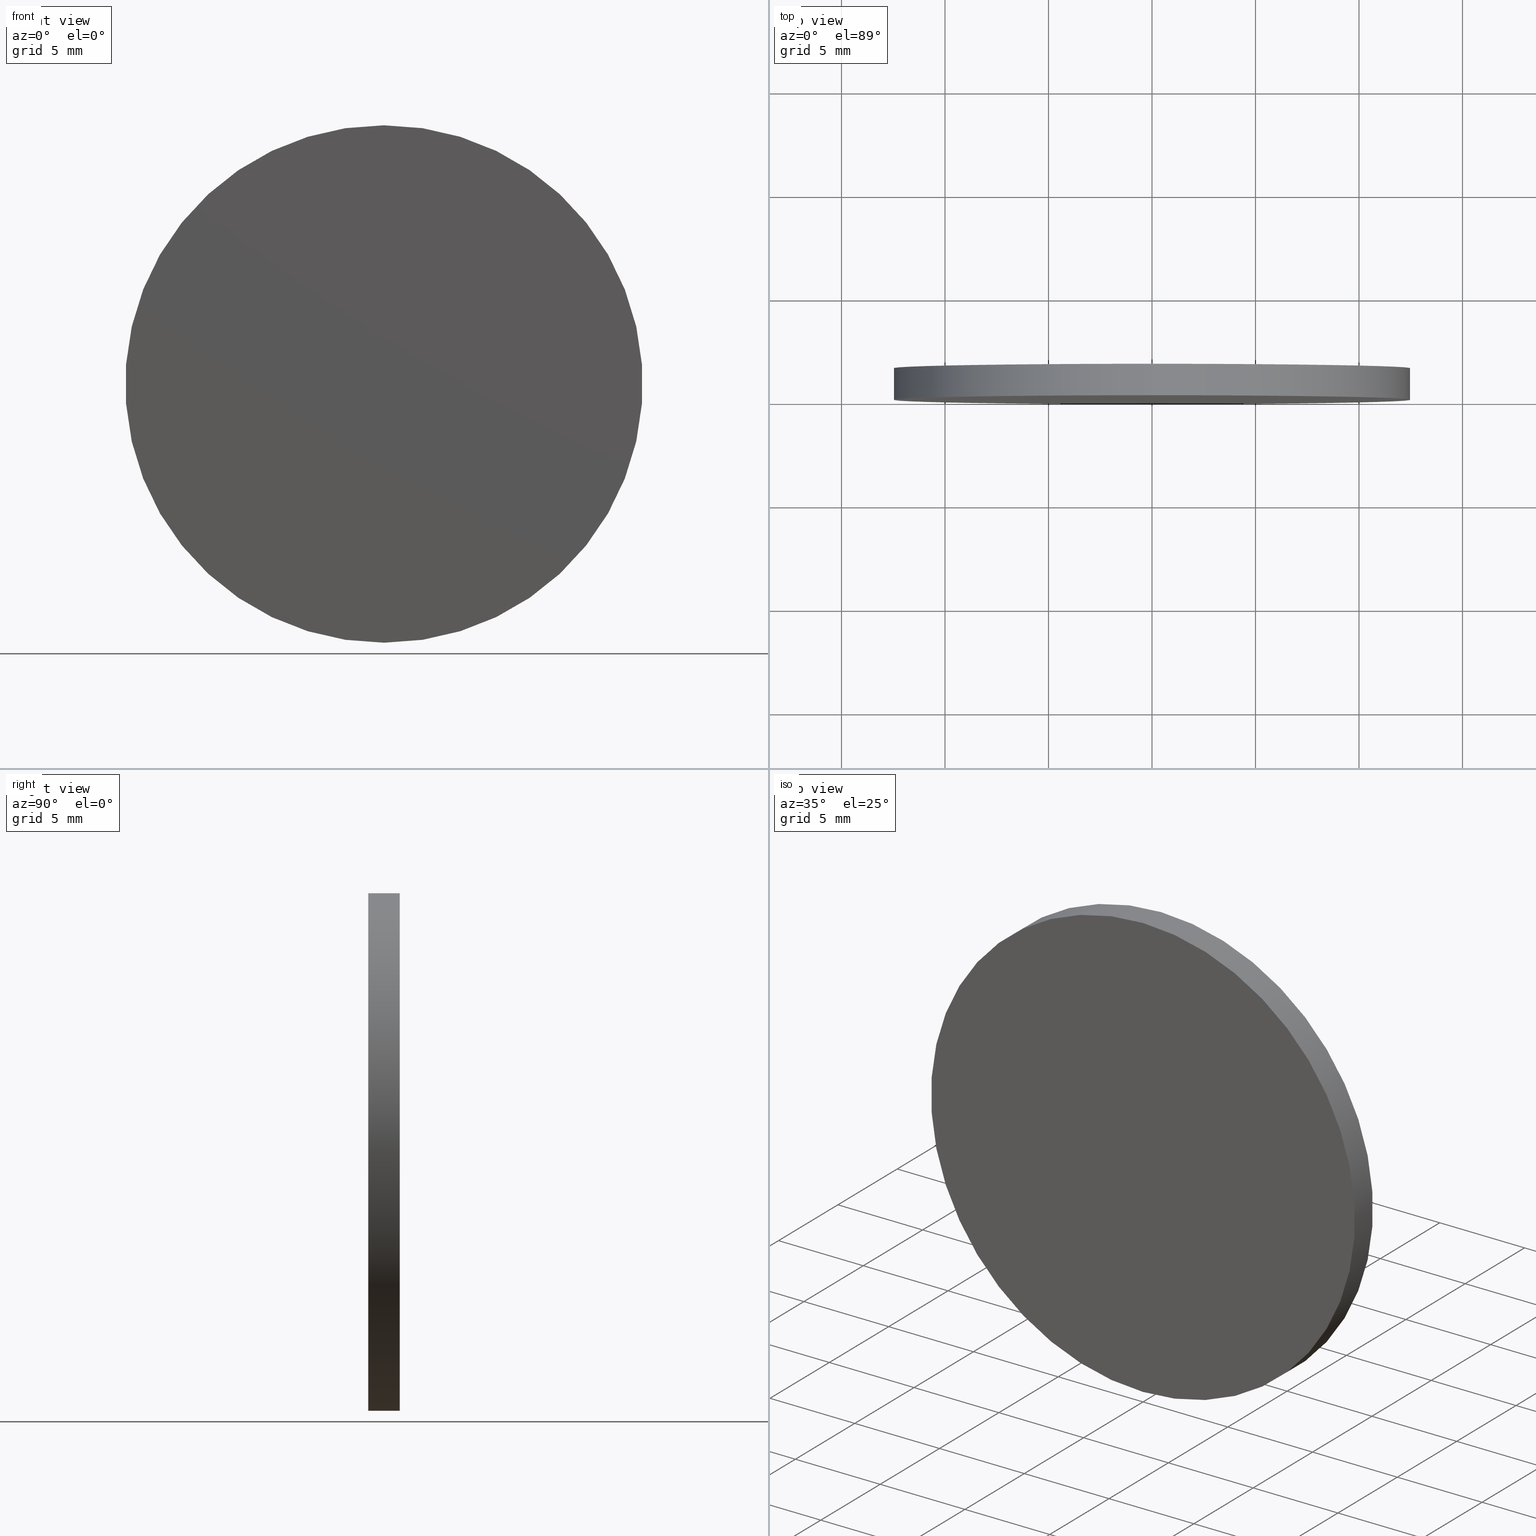
[diagram: canonical four-view strip — front | top / right | iso, engineering-drawing reading convention]
A machine part, canonical four-view strip (front | top / right | iso — engineering-drawing reading convention). The complete STEP part file that produces these views, byte-faithful:
ISO-10303-21;
HEADER;
FILE_DESCRIPTION (( 'STEP AP214' ),
    '1' );
FILE_NAME ('248582.STEP',
    '2019-08-06T02:48:38',
    ( 'user' ),
    ( '΢���й�' ),
    'SwSTEP 2.0',
    'SolidWorks 2016',
    '' );
FILE_SCHEMA (( 'AUTOMOTIVE_DESIGN' ));
ENDSEC;

DATA;
#1 = EDGE_LOOP ( 'NONE', ( #66, #125, #99, #62 ) ) ;
#2 = FACE_OUTER_BOUND ( 'NONE', #49, .T. ) ;
#3 = CARTESIAN_POINT ( 'NONE',  ( 0.0000000000000000000, 1.520000000000000000, 0.0000000000000000000 ) ) ;
#4 = CYLINDRICAL_SURFACE ( 'NONE', #19, 12.50000000000000000 ) ;
#5 =( LENGTH_UNIT ( ) NAMED_UNIT ( * ) SI_UNIT ( .MILLI., .METRE. ) );
#6 = DIRECTION ( 'NONE',  ( 0.0000000000000000000, 0.0000000000000000000, 1.000000000000000000 ) ) ;
#7 = ORIENTED_EDGE ( 'NONE', *, *, #105, .T. ) ;
#8 = FACE_OUTER_BOUND ( 'NONE', #1, .T. ) ;
#9 = ORIENTED_EDGE ( 'NONE', *, *, #57, .F. ) ;
#10 = AXIS2_PLACEMENT_3D ( 'NONE', #139, #108, #96 ) ;
#11 = VERTEX_POINT ( 'NONE', #45 ) ;
#12 = DIRECTION ( 'NONE',  ( -0.0000000000000000000, -1.000000000000000000, -0.0000000000000000000 ) ) ;
#13 = AXIS2_PLACEMENT_3D ( 'NONE', #47, #119, #46 ) ;
#14 = CARTESIAN_POINT ( 'NONE',  ( 0.0000000000000000000, 0.0000000000000000000, 0.0000000000000000000 ) ) ;
#15 = DIRECTION ( 'NONE',  ( 0.0000000000000000000, 1.000000000000000000, 0.0000000000000000000 ) ) ;
#16 = DIRECTION ( 'NONE',  ( -0.0000000000000000000, -1.000000000000000000, -0.0000000000000000000 ) ) ;
#17 = SURFACE_SIDE_STYLE ('',( #60 ) ) ;
#18 = AXIS2_PLACEMENT_3D ( 'NONE', #14, #15, #107 ) ;
#19 = AXIS2_PLACEMENT_3D ( 'NONE', #89, #12, #29 ) ;
#20 = EDGE_CURVE ( 'NONE', #11, #98, #90, .T. ) ;
#21 = DIRECTION ( 'NONE',  ( -0.0000000000000000000, -1.000000000000000000, -0.0000000000000000000 ) ) ;
#22 = AXIS2_PLACEMENT_3D ( 'NONE', #117, #6, #71 ) ;
#23 =( GEOMETRIC_REPRESENTATION_CONTEXT ( 3 ) GLOBAL_UNCERTAINTY_ASSIGNED_CONTEXT ( ( #131 ) ) GLOBAL_UNIT_ASSIGNED_CONTEXT ( ( #106, #128, #31 ) ) REPRESENTATION_CONTEXT ( 'NONE', 'WORKASPACE' ) );
#24 =( NAMED_UNIT ( * ) SI_UNIT ( $, .STERADIAN. ) SOLID_ANGLE_UNIT ( ) );
#25 = FILL_AREA_STYLE_COLOUR ( '', #118 ) ;
#26 = ADVANCED_FACE ( 'NONE', ( #2 ), #53, .T. ) ;
#27 = PRODUCT_DEFINITION ( 'δ֪', '', #32, #116 ) ;
#28 = SURFACE_STYLE_FILL_AREA ( #41 ) ;
#29 = DIRECTION ( 'NONE',  ( 0.0000000000000000000, 0.0000000000000000000, -1.000000000000000000 ) ) ;
#30 = PRESENTATION_LAYER_ASSIGNMENT (  '', '', ( #100 ) ) ;
#31 =( NAMED_UNIT ( * ) SI_UNIT ( $, .STERADIAN. ) SOLID_ANGLE_UNIT ( ) );
#32 = PRODUCT_DEFINITION_FORMATION_WITH_SPECIFIED_SOURCE ( '�κ�', '', #102, .NOT_KNOWN. ) ;
#33 = COLOUR_RGB ( '',1.000000000000000000, 1.000000000000000000, 1.000000000000000000 ) ;
#34 = ORIENTED_EDGE ( 'NONE', *, *, #86, .T. ) ;
#35 = EDGE_LOOP ( 'NONE', ( #9, #122, #34, #126 ) ) ;
#36 = MANIFOLD_SOLID_BREP ( '͹̨-����1', #64 ) ;
#37 = PRODUCT_DEFINITION_SHAPE ( 'NONE', 'NONE',  #27 ) ;
#38 = ORIENTED_EDGE ( 'NONE', *, *, #50, .F. ) ;
#39 = DIRECTION ( 'NONE',  ( 0.0000000000000000000, 0.0000000000000000000, 1.000000000000000000 ) ) ;
#40 = FACE_OUTER_BOUND ( 'NONE', #35, .T. ) ;
#41 = FILL_AREA_STYLE ('',( #25 ) ) ;
#42 = PRODUCT_RELATED_PRODUCT_CATEGORY ( 'part', '', ( #102 ) ) ;
#43 = SURFACE_STYLE_USAGE ( .BOTH. , #115 ) ;
#44 = UNCERTAINTY_MEASURE_WITH_UNIT (LENGTH_MEASURE( 1.000000000000000100E-005 ), #69, 'distance_accuracy_value', 'NONE');
#45 = CARTESIAN_POINT ( 'NONE',  ( 0.0000000000000000000, 0.0000000000000000000, -12.50000000000000000 ) ) ;
#46 = DIRECTION ( 'NONE',  ( 0.0000000000000000000, 0.0000000000000000000, 1.000000000000000000 ) ) ;
#47 = CARTESIAN_POINT ( 'NONE',  ( 0.0000000000000000000, 0.0000000000000000000, 0.0000000000000000000 ) ) ;
#48 = APPLICATION_CONTEXT ( 'automotive_design' ) ;
#49 = EDGE_LOOP ( 'NONE', ( #121, #7 ) ) ;
#50 = EDGE_CURVE ( 'NONE', #98, #11, #112, .T. ) ;
#51 = CARTESIAN_POINT ( 'NONE',  ( 0.0000000000000000000, 0.0000000000000000000, 0.0000000000000000000 ) ) ;
#52 = APPLICATION_CONTEXT ( 'automotive_design' ) ;
#53 = PLANE ( 'NONE',  #10 ) ;
#54 = UNCERTAINTY_MEASURE_WITH_UNIT (LENGTH_MEASURE( 1.000000000000000100E-005 ), #5, 'distance_accuracy_value', 'NONE');
#55 = PRESENTATION_LAYER_ASSIGNMENT (  '', '', ( #75 ) ) ;
#56 = DIRECTION ( 'NONE',  ( 0.0000000000000000000, 0.0000000000000000000, -1.000000000000000000 ) ) ;
#57 = EDGE_CURVE ( 'NONE', #101, #98, #76, .T. ) ;
#58 = CARTESIAN_POINT ( 'NONE',  ( 1.530808498934191500E-015, 1.520000000000000000, 12.50000000000000000 ) ) ;
#59 = PRESENTATION_STYLE_ASSIGNMENT (( #43 ) ) ;
#60 = SURFACE_STYLE_FILL_AREA ( #97 ) ;
#61 = DIRECTION ( 'NONE',  ( 0.0000000000000000000, 1.000000000000000000, 0.0000000000000000000 ) ) ;
#62 = ORIENTED_EDGE ( 'NONE', *, *, #86, .F. ) ;
#63 = MECHANICAL_DESIGN_GEOMETRIC_PRESENTATION_REPRESENTATION (  '', ( #75 ), #23 ) ;
#64 = CLOSED_SHELL ( 'NONE', ( #70, #79, #26, #130 ) ) ;
#65 = VERTEX_POINT ( 'NONE', #114 ) ;
#66 = ORIENTED_EDGE ( 'NONE', *, *, #105, .F. ) ;
#67 =( GEOMETRIC_REPRESENTATION_CONTEXT ( 3 ) GLOBAL_UNCERTAINTY_ASSIGNED_CONTEXT ( ( #44 ) ) GLOBAL_UNIT_ASSIGNED_CONTEXT ( ( #69, #92, #24 ) ) REPRESENTATION_CONTEXT ( 'NONE', 'WORKASPACE' ) );
#68 = CARTESIAN_POINT ( 'NONE',  ( 1.530808498934191500E-015, 0.0000000000000000000, 12.50000000000000000 ) ) ;
#69 =( LENGTH_UNIT ( ) NAMED_UNIT ( * ) SI_UNIT ( .MILLI., .METRE. ) );
#70 = ADVANCED_FACE ( 'NONE', ( #8 ), #137, .T. ) ;
#71 = DIRECTION ( 'NONE',  ( 1.000000000000000000, 0.0000000000000000000, 0.0000000000000000000 ) ) ;
#72 = FILL_AREA_STYLE_COLOUR ( '', #33 ) ;
#73 = SHAPE_DEFINITION_REPRESENTATION ( #37, #91 ) ;
#74 = AXIS2_PLACEMENT_3D ( 'NONE', #103, #21, #56 ) ;
#75 = STYLED_ITEM ( 'NONE', ( #59 ), #91 ) ;
#76 = LINE ( 'NONE', #135, #87 ) ;
#77 =( NAMED_UNIT ( * ) SI_UNIT ( $, .STERADIAN. ) SOLID_ANGLE_UNIT ( ) );
#78 = DIRECTION ( 'NONE',  ( 0.0000000000000000000, 1.000000000000000000, 0.0000000000000000000 ) ) ;
#79 = ADVANCED_FACE ( 'NONE', ( #40 ), #4, .T. ) ;
#80 = CARTESIAN_POINT ( 'NONE',  ( 0.0000000000000000000, 1.520000000000000000, -12.50000000000000000 ) ) ;
#81 = PRODUCT_CONTEXT ( 'NONE', #52, 'mechanical' ) ;
#82 = AXIS2_PLACEMENT_3D ( 'NONE', #51, #127, #39 ) ;
#83 =( NAMED_UNIT ( * ) PLANE_ANGLE_UNIT ( ) SI_UNIT ( $, .RADIAN. ) );
#84 = EDGE_LOOP ( 'NONE', ( #124, #38 ) ) ;
#85 = PRESENTATION_STYLE_ASSIGNMENT (( #111 ) ) ;
#86 = EDGE_CURVE ( 'NONE', #65, #11, #134, .T. ) ;
#87 = VECTOR ( 'NONE', #110, 1000.000000000000000 ) ;
#88 =( GEOMETRIC_REPRESENTATION_CONTEXT ( 3 ) GLOBAL_UNCERTAINTY_ASSIGNED_CONTEXT ( ( #54 ) ) GLOBAL_UNIT_ASSIGNED_CONTEXT ( ( #5, #83, #77 ) ) REPRESENTATION_CONTEXT ( 'NONE', 'WORKASPACE' ) );
#89 = CARTESIAN_POINT ( 'NONE',  ( 0.0000000000000000000, 1.520000000000000000, 0.0000000000000000000 ) ) ;
#90 = CIRCLE ( 'NONE', #13, 12.50000000000000000 ) ;
#91 = ADVANCED_BREP_SHAPE_REPRESENTATION ( '248582', ( #36, #22 ), #67 ) ;
#92 =( NAMED_UNIT ( * ) PLANE_ANGLE_UNIT ( ) SI_UNIT ( $, .RADIAN. ) );
#93 = DIRECTION ( 'NONE',  ( 0.0000000000000000000, 0.0000000000000000000, 1.000000000000000000 ) ) ;
#94 = PLANE ( 'NONE',  #18 ) ;
#95 = FACE_OUTER_BOUND ( 'NONE', #84, .T. ) ;
#96 = DIRECTION ( 'NONE',  ( 0.0000000000000000000, -0.0000000000000000000, 1.000000000000000000 ) ) ;
#97 = FILL_AREA_STYLE ('',( #72 ) ) ;
#98 = VERTEX_POINT ( 'NONE', #68 ) ;
#99 = ORIENTED_EDGE ( 'NONE', *, *, #50, .T. ) ;
#100 = STYLED_ITEM ( 'NONE', ( #85 ), #36 ) ;
#101 = VERTEX_POINT ( 'NONE', #58 ) ;
#102 = PRODUCT ( '248582', '248582', '', ( #81 ) ) ;
#103 = CARTESIAN_POINT ( 'NONE',  ( 0.0000000000000000000, 1.520000000000000000, 0.0000000000000000000 ) ) ;
#104 = APPLICATION_PROTOCOL_DEFINITION ( 'draft international standard', 'automotive_design', 1998, #52 ) ;
#105 = EDGE_CURVE ( 'NONE', #101, #65, #123, .T. ) ;
#106 =( LENGTH_UNIT ( ) NAMED_UNIT ( * ) SI_UNIT ( .MILLI., .METRE. ) );
#107 = DIRECTION ( 'NONE',  ( 0.0000000000000000000, -0.0000000000000000000, 1.000000000000000000 ) ) ;
#108 = DIRECTION ( 'NONE',  ( 0.0000000000000000000, 1.000000000000000000, 0.0000000000000000000 ) ) ;
#109 = AXIS2_PLACEMENT_3D ( 'NONE', #129, #61, #136 ) ;
#110 = DIRECTION ( 'NONE',  ( -0.0000000000000000000, -1.000000000000000000, -0.0000000000000000000 ) ) ;
#111 = SURFACE_STYLE_USAGE ( .BOTH. , #17 ) ;
#112 = CIRCLE ( 'NONE', #82, 12.50000000000000000 ) ;
#113 = AXIS2_PLACEMENT_3D ( 'NONE', #3, #78, #93 ) ;
#114 = CARTESIAN_POINT ( 'NONE',  ( 0.0000000000000000000, 1.520000000000000000, -12.50000000000000000 ) ) ;
#115 = SURFACE_SIDE_STYLE ('',( #28 ) ) ;
#116 = PRODUCT_DEFINITION_CONTEXT ( 'detailed design', #48, 'design' ) ;
#117 = CARTESIAN_POINT ( 'NONE',  ( 0.0000000000000000000, 0.0000000000000000000, 0.0000000000000000000 ) ) ;
#118 = COLOUR_RGB ( '',1.000000000000000000, 1.000000000000000000, 1.000000000000000000 ) ;
#119 = DIRECTION ( 'NONE',  ( 0.0000000000000000000, 1.000000000000000000, 0.0000000000000000000 ) ) ;
#120 = APPLICATION_PROTOCOL_DEFINITION ( 'draft international standard', 'automotive_design', 1998, #48 ) ;
#121 = ORIENTED_EDGE ( 'NONE', *, *, #140, .T. ) ;
#122 = ORIENTED_EDGE ( 'NONE', *, *, #140, .F. ) ;
#123 = CIRCLE ( 'NONE', #113, 12.50000000000000000 ) ;
#124 = ORIENTED_EDGE ( 'NONE', *, *, #20, .F. ) ;
#125 = ORIENTED_EDGE ( 'NONE', *, *, #57, .T. ) ;
#126 = ORIENTED_EDGE ( 'NONE', *, *, #20, .T. ) ;
#127 = DIRECTION ( 'NONE',  ( 0.0000000000000000000, 1.000000000000000000, 0.0000000000000000000 ) ) ;
#128 =( NAMED_UNIT ( * ) PLANE_ANGLE_UNIT ( ) SI_UNIT ( $, .RADIAN. ) );
#129 = CARTESIAN_POINT ( 'NONE',  ( 0.0000000000000000000, 1.520000000000000000, 0.0000000000000000000 ) ) ;
#130 = ADVANCED_FACE ( 'NONE', ( #95 ), #94, .F. ) ;
#131 = UNCERTAINTY_MEASURE_WITH_UNIT (LENGTH_MEASURE( 1.000000000000000100E-005 ), #106, 'distance_accuracy_value', 'NONE');
#132 = MECHANICAL_DESIGN_GEOMETRIC_PRESENTATION_REPRESENTATION (  '', ( #100 ), #88 ) ;
#133 = VECTOR ( 'NONE', #16, 1000.000000000000000 ) ;
#134 = LINE ( 'NONE', #80, #133 ) ;
#135 = CARTESIAN_POINT ( 'NONE',  ( 1.530808498934191500E-015, 1.520000000000000000, 12.50000000000000000 ) ) ;
#136 = DIRECTION ( 'NONE',  ( 0.0000000000000000000, 0.0000000000000000000, 1.000000000000000000 ) ) ;
#137 = CYLINDRICAL_SURFACE ( 'NONE', #74, 12.50000000000000000 ) ;
#138 = CIRCLE ( 'NONE', #109, 12.50000000000000000 ) ;
#139 = CARTESIAN_POINT ( 'NONE',  ( 0.0000000000000000000, 1.520000000000000000, 0.0000000000000000000 ) ) ;
#140 = EDGE_CURVE ( 'NONE', #65, #101, #138, .T. ) ;
ENDSEC;
END-ISO-10303-21;
